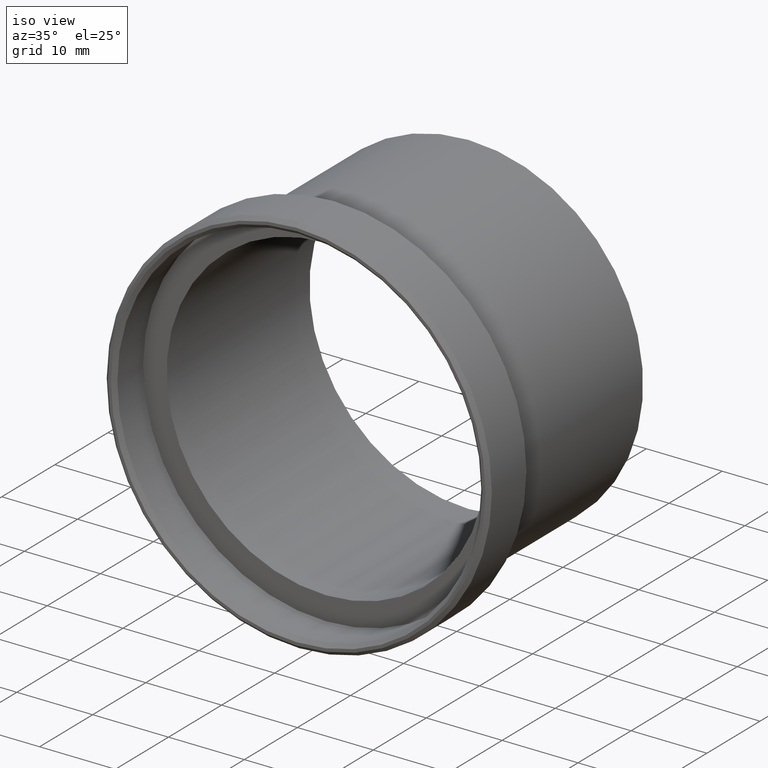
[diagram: clean part render]
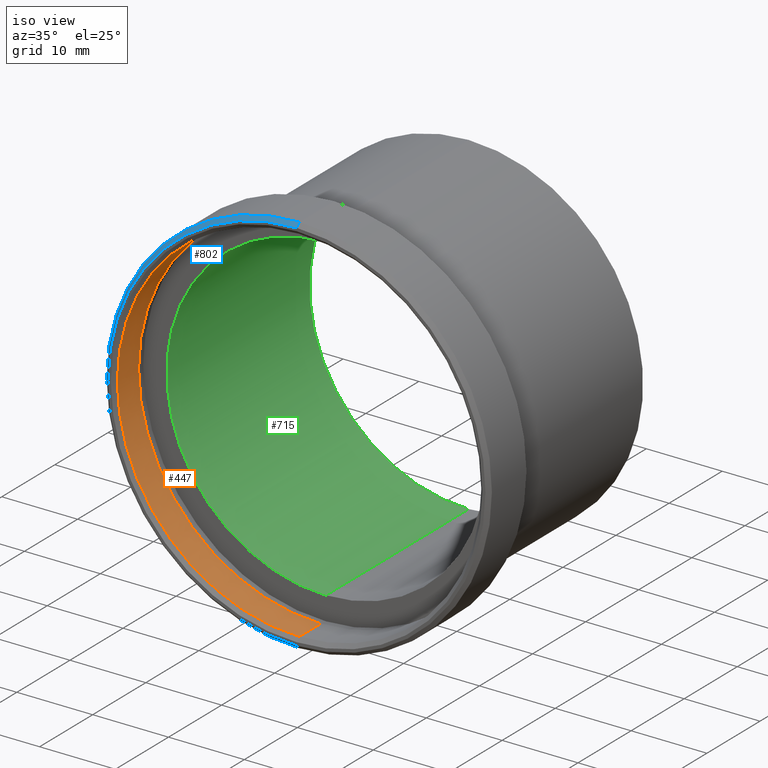
[diagram: same view with three faces highlighted in distinct colors, each labeled with its STEP entity id]
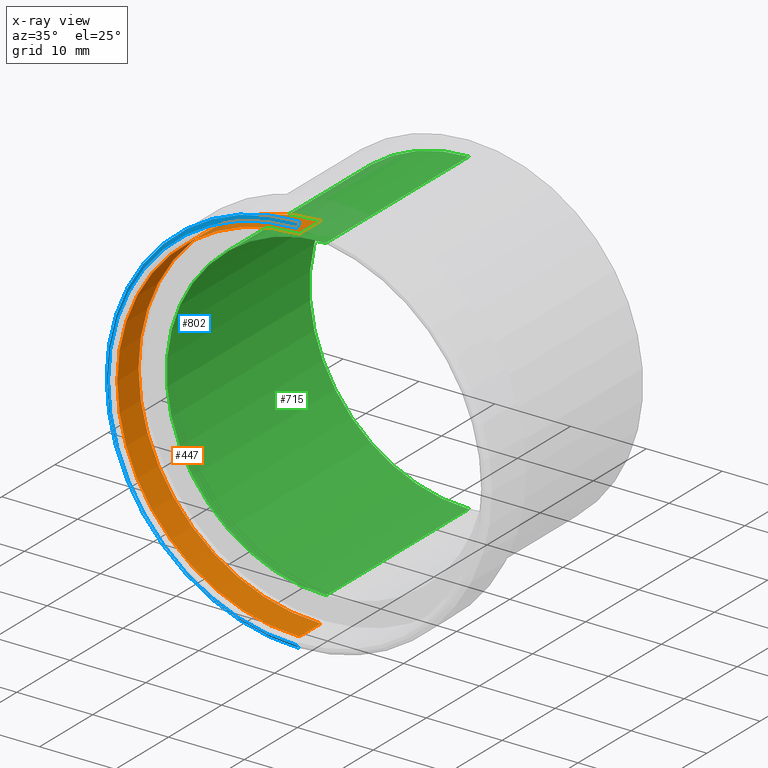
[diagram: x-ray of the same camera — body ghosted, the three highlighted faces saturated]
A machine part, iso view with three faces highlighted in distinct colors.
The next image is the same camera in x-ray (body ghosted, the three faces saturated) — at least one of them is partly hidden behind the body in this view.
Their STEP definitions:

[orange] entity #447 — the highlighted cylindrical surface (partial cylindrical patch) has radius 24 mm, axis along (-0, 1, -0).
#28 = ORIENTED_EDGE ( 'NONE', *, *, #505, .F. ) ;
#38 = VECTOR ( 'NONE', #656, 1000.000000000000000 ) ;
#81 = DIRECTION ( 'NONE',  ( 0.0000000000000000000, 0.0000000000000000000, 1.000000000000000000 ) ) ;
#101 = CARTESIAN_POINT ( 'NONE',  ( 0.0000000000000000000, 44.59859774529311900, 24.00000000000000700 ) ) ;
#127 = VERTEX_POINT ( 'NONE', #592 ) ;
#145 = CARTESIAN_POINT ( 'NONE',  ( 0.0000000000000000000, -5.357145825433104100, 24.00000000000000700 ) ) ;
#157 = DIRECTION ( 'NONE',  ( 0.0000000000000000000, 0.0000000000000000000, 1.000000000000000000 ) ) ;
#158 = CIRCLE ( 'NONE', #305, 24.00000000000000700 ) ;
#207 = DIRECTION ( 'NONE',  ( -0.0000000000000000000, 1.000000000000000000, -0.0000000000000000000 ) ) ;
#271 = CARTESIAN_POINT ( 'NONE',  ( 0.0000000000000000000, -1.357145825433107900, 0.0000000000000000000 ) ) ;
#305 = AXIS2_PLACEMENT_3D ( 'NONE', #417, #576, #157 ) ;
#351 = VECTOR ( 'NONE', #764, 1000.000000000000000 ) ;
#369 = CYLINDRICAL_SURFACE ( 'NONE', #793, 24.00000000000000700 ) ;
#389 = ORIENTED_EDGE ( 'NONE', *, *, #691, .F. ) ;
#417 = CARTESIAN_POINT ( 'NONE',  ( 0.0000000000000000000, -5.357145825433104100, 0.0000000000000000000 ) ) ;
#419 = CARTESIAN_POINT ( 'NONE',  ( 0.0000000000000000000, -1.357145825433107900, 24.00000000000000700 ) ) ;
#438 = FACE_OUTER_BOUND ( 'NONE', #476, .T. ) ;
#447 = ADVANCED_FACE ( 'NONE', ( #438 ), #369, .F. ) ;
#454 = CARTESIAN_POINT ( 'NONE',  ( 0.0000000000000000000, 44.59859774529311900, 0.0000000000000000000 ) ) ;
#476 = EDGE_LOOP ( 'NONE', ( #389, #593, #803, #28 ) ) ;
#505 = EDGE_CURVE ( 'NONE', #608, #815, #814, .T. ) ;
#517 = CIRCLE ( 'NONE', #621, 24.00000000000000700 ) ;
#527 = DIRECTION ( 'NONE',  ( 0.0000000000000000000, 0.0000000000000000000, 1.000000000000000000 ) ) ;
#552 = LINE ( 'NONE', #553, #351 ) ;
#553 = CARTESIAN_POINT ( 'NONE',  ( 2.939152317953648700E-015, 44.59859774529311900, -24.00000000000000700 ) ) ;
#576 = DIRECTION ( 'NONE',  ( -0.0000000000000000000, 1.000000000000000000, -0.0000000000000000000 ) ) ;
#592 = CARTESIAN_POINT ( 'NONE',  ( 2.939152317953648700E-015, -1.357145825433107900, -24.00000000000000700 ) ) ;
#593 = ORIENTED_EDGE ( 'NONE', *, *, #685, .T. ) ;
#608 = VERTEX_POINT ( 'NONE', #145 ) ;
#621 = AXIS2_PLACEMENT_3D ( 'NONE', #271, #207, #81 ) ;
#656 = DIRECTION ( 'NONE',  ( -0.0000000000000000000, 1.000000000000000000, -0.0000000000000000000 ) ) ;
#662 = DIRECTION ( 'NONE',  ( -0.0000000000000000000, 1.000000000000000000, -0.0000000000000000000 ) ) ;
#685 = EDGE_CURVE ( 'NONE', #773, #127, #552, .T. ) ;
#691 = EDGE_CURVE ( 'NONE', #773, #608, #158, .T. ) ;
#764 = DIRECTION ( 'NONE',  ( -0.0000000000000000000, 1.000000000000000000, -0.0000000000000000000 ) ) ;
#769 = EDGE_CURVE ( 'NONE', #127, #815, #517, .T. ) ;
#773 = VERTEX_POINT ( 'NONE', #850 ) ;
#793 = AXIS2_PLACEMENT_3D ( 'NONE', #454, #662, #527 ) ;
#803 = ORIENTED_EDGE ( 'NONE', *, *, #769, .T. ) ;
#814 = LINE ( 'NONE', #101, #38 ) ;
#815 = VERTEX_POINT ( 'NONE', #419 ) ;
#850 = CARTESIAN_POINT ( 'NONE',  ( 2.939152317953648700E-015, -5.357145825433104100, -24.00000000000000700 ) ) ;

[blue] entity #802 — the highlighted conical surface has half-angle 45 deg.
#2 = LINE ( 'NONE', #133, #696 ) ;
#18 = CONICAL_SURFACE ( 'NONE', #705, 24.90000000000000200, 0.7853981633974518300 ) ;
#48 = CARTESIAN_POINT ( 'NONE',  ( 0.0000000000000000000, -5.357145825433104100, 0.0000000000000000000 ) ) ;
#63 = CIRCLE ( 'NONE', #759, 24.90000000000000200 ) ;
#82 = AXIS2_PLACEMENT_3D ( 'NONE', #48, #604, #466 ) ;
#84 = DIRECTION ( 'NONE',  ( 0.0000000000000000000, 0.0000000000000000000, 1.000000000000000000 ) ) ;
#97 = VERTEX_POINT ( 'NONE', #737 ) ;
#114 = CARTESIAN_POINT ( 'NONE',  ( 0.0000000000000000000, -5.857145825433105000, 24.90000000000000200 ) ) ;
#115 = EDGE_CURVE ( 'NONE', #582, #639, #804, .T. ) ;
#133 = CARTESIAN_POINT ( 'NONE',  ( 3.049370529876910100E-015, -5.857145825433105000, -24.90000000000000200 ) ) ;
#199 = EDGE_CURVE ( 'NONE', #478, #639, #594, .T. ) ;
#224 = EDGE_LOOP ( 'NONE', ( #887, #399, #721, #776 ) ) ;
#344 = CARTESIAN_POINT ( 'NONE',  ( 0.0000000000000000000, -5.857145825433105000, 0.0000000000000000000 ) ) ;
#348 = DIRECTION ( 'NONE',  ( -0.0000000000000000000, 1.000000000000000000, -0.0000000000000000000 ) ) ;
#383 = EDGE_CURVE ( 'NONE', #97, #582, #2, .T. ) ;
#399 = ORIENTED_EDGE ( 'NONE', *, *, #832, .T. ) ;
#402 = DIRECTION ( 'NONE',  ( 0.0000000000000000000, 0.7071067811865450200, 0.7071067811865500200 ) ) ;
#466 = DIRECTION ( 'NONE',  ( 0.0000000000000000000, 0.0000000000000000000, 1.000000000000000000 ) ) ;
#474 = CARTESIAN_POINT ( 'NONE',  ( 0.0000000000000000000, -5.857145825433105000, 24.90000000000000200 ) ) ;
#478 = VERTEX_POINT ( 'NONE', #114 ) ;
#513 = DIRECTION ( 'NONE',  ( -0.0000000000000000000, 1.000000000000000000, -0.0000000000000000000 ) ) ;
#544 = FACE_OUTER_BOUND ( 'NONE', #224, .T. ) ;
#575 = VECTOR ( 'NONE', #402, 1000.000000000000000 ) ;
#582 = VERTEX_POINT ( 'NONE', #835 ) ;
#594 = LINE ( 'NONE', #474, #575 ) ;
#604 = DIRECTION ( 'NONE',  ( -0.0000000000000000000, 1.000000000000000000, -0.0000000000000000000 ) ) ;
#639 = VERTEX_POINT ( 'NONE', #756 ) ;
#696 = VECTOR ( 'NONE', #869, 1000.000000000000000 ) ;
#705 = AXIS2_PLACEMENT_3D ( 'NONE', #344, #348, #84 ) ;
#718 = DIRECTION ( 'NONE',  ( 0.0000000000000000000, 0.0000000000000000000, 1.000000000000000000 ) ) ;
#721 = ORIENTED_EDGE ( 'NONE', *, *, #199, .T. ) ;
#737 = CARTESIAN_POINT ( 'NONE',  ( 3.079986699855593900E-015, -5.857145825433105000, -24.90000000000000200 ) ) ;
#756 = CARTESIAN_POINT ( 'NONE',  ( 0.0000000000000000000, -5.357145825433104100, 25.40000000000000600 ) ) ;
#759 = AXIS2_PLACEMENT_3D ( 'NONE', #782, #513, #718 ) ;
#776 = ORIENTED_EDGE ( 'NONE', *, *, #115, .F. ) ;
#782 = CARTESIAN_POINT ( 'NONE',  ( 0.0000000000000000000, -5.857145825433105000, 0.0000000000000000000 ) ) ;
#802 = ADVANCED_FACE ( 'NONE', ( #544 ), #18, .T. ) ;
#804 = CIRCLE ( 'NONE', #82, 25.40000000000000600 ) ;
#832 = EDGE_CURVE ( 'NONE', #97, #478, #63, .T. ) ;
#835 = CARTESIAN_POINT ( 'NONE',  ( 3.110602869834278000E-015, -5.357145825433104100, -25.40000000000000600 ) ) ;
#869 = DIRECTION ( 'NONE',  ( 8.659560562354963700E-017, 0.7071067811865450200, -0.7071067811865500200 ) ) ;
#887 = ORIENTED_EDGE ( 'NONE', *, *, #383, .F. ) ;

[green] entity #715 — the highlighted cylindrical surface (partial cylindrical patch) has radius 21 mm, axis along (-0, 1, -0).
#14 = CARTESIAN_POINT ( 'NONE',  ( 0.0000000000000000000, 44.59859774529311900, 0.0000000000000000000 ) ) ;
#44 = LINE ( 'NONE', #193, #839 ) ;
#74 = DIRECTION ( 'NONE',  ( 0.0000000000000000000, 0.0000000000000000000, 1.000000000000000000 ) ) ;
#77 = ORIENTED_EDGE ( 'NONE', *, *, #195, .F. ) ;
#88 = VERTEX_POINT ( 'NONE', #386 ) ;
#92 = DIRECTION ( 'NONE',  ( 0.0000000000000000000, 0.0000000000000000000, 1.000000000000000000 ) ) ;
#98 = VERTEX_POINT ( 'NONE', #444 ) ;
#121 = DIRECTION ( 'NONE',  ( -0.0000000000000000000, 1.000000000000000000, -0.0000000000000000000 ) ) ;
#155 = DIRECTION ( 'NONE',  ( -0.0000000000000000000, 1.000000000000000000, -0.0000000000000000000 ) ) ;
#174 = CIRCLE ( 'NONE', #525, 21.00000000000000700 ) ;
#193 = CARTESIAN_POINT ( 'NONE',  ( 0.0000000000000000000, 44.59859774529311900, 21.00000000000000700 ) ) ;
#195 = EDGE_CURVE ( 'NONE', #88, #254, #44, .T. ) ;
#238 = EDGE_CURVE ( 'NONE', #864, #98, #557, .T. ) ;
#245 = ORIENTED_EDGE ( 'NONE', *, *, #577, .T. ) ;
#250 = CARTESIAN_POINT ( 'NONE',  ( 0.0000000000000000000, 26.54285417456689400, 21.00000000000000700 ) ) ;
#254 = VERTEX_POINT ( 'NONE', #250 ) ;
#262 = AXIS2_PLACEMENT_3D ( 'NONE', #14, #775, #504 ) ;
#275 = ORIENTED_EDGE ( 'NONE', *, *, #238, .T. ) ;
#386 = CARTESIAN_POINT ( 'NONE',  ( 0.0000000000000000000, -0.3571458254331069700, 21.00000000000000700 ) ) ;
#425 = CYLINDRICAL_SURFACE ( 'NONE', #262, 21.00000000000000700 ) ;
#436 = CARTESIAN_POINT ( 'NONE',  ( 2.571758278209442400E-015, -0.3571458254331069700, -21.00000000000000700 ) ) ;
#440 = EDGE_LOOP ( 'NONE', ( #896, #275, #245, #77 ) ) ;
#444 = CARTESIAN_POINT ( 'NONE',  ( 2.602374448188126600E-015, 26.54285417456689400, -21.00000000000000700 ) ) ;
#488 = CARTESIAN_POINT ( 'NONE',  ( 0.0000000000000000000, 26.54285417456689400, 0.0000000000000000000 ) ) ;
#504 = DIRECTION ( 'NONE',  ( 0.0000000000000000000, 0.0000000000000000000, 1.000000000000000000 ) ) ;
#525 = AXIS2_PLACEMENT_3D ( 'NONE', #694, #155, #92 ) ;
#557 = LINE ( 'NONE', #746, #819 ) ;
#577 = EDGE_CURVE ( 'NONE', #98, #254, #720, .T. ) ;
#601 = AXIS2_PLACEMENT_3D ( 'NONE', #488, #807, #74 ) ;
#626 = DIRECTION ( 'NONE',  ( -0.0000000000000000000, 1.000000000000000000, -0.0000000000000000000 ) ) ;
#672 = EDGE_CURVE ( 'NONE', #864, #88, #174, .T. ) ;
#688 = FACE_OUTER_BOUND ( 'NONE', #440, .T. ) ;
#694 = CARTESIAN_POINT ( 'NONE',  ( 0.0000000000000000000, -0.3571458254331069700, 0.0000000000000000000 ) ) ;
#715 = ADVANCED_FACE ( 'NONE', ( #688 ), #425, .F. ) ;
#720 = CIRCLE ( 'NONE', #601, 21.00000000000000700 ) ;
#746 = CARTESIAN_POINT ( 'NONE',  ( 2.571758278209442400E-015, 44.59859774529311900, -21.00000000000000700 ) ) ;
#775 = DIRECTION ( 'NONE',  ( -0.0000000000000000000, 1.000000000000000000, -0.0000000000000000000 ) ) ;
#807 = DIRECTION ( 'NONE',  ( -0.0000000000000000000, 1.000000000000000000, -0.0000000000000000000 ) ) ;
#819 = VECTOR ( 'NONE', #626, 1000.000000000000000 ) ;
#839 = VECTOR ( 'NONE', #121, 1000.000000000000000 ) ;
#864 = VERTEX_POINT ( 'NONE', #436 ) ;
#896 = ORIENTED_EDGE ( 'NONE', *, *, #672, .F. ) ;